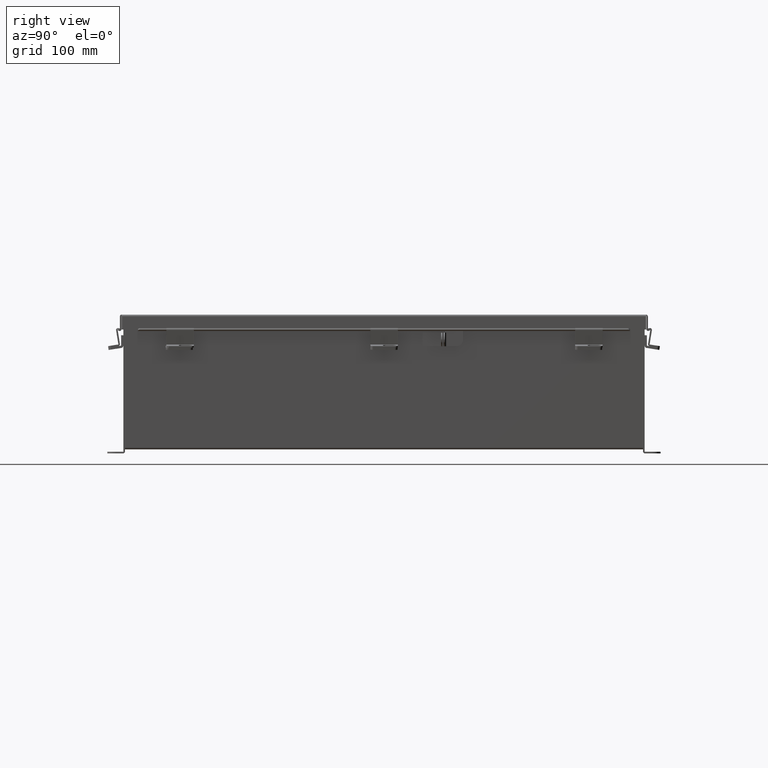
[diagram: clean part render]
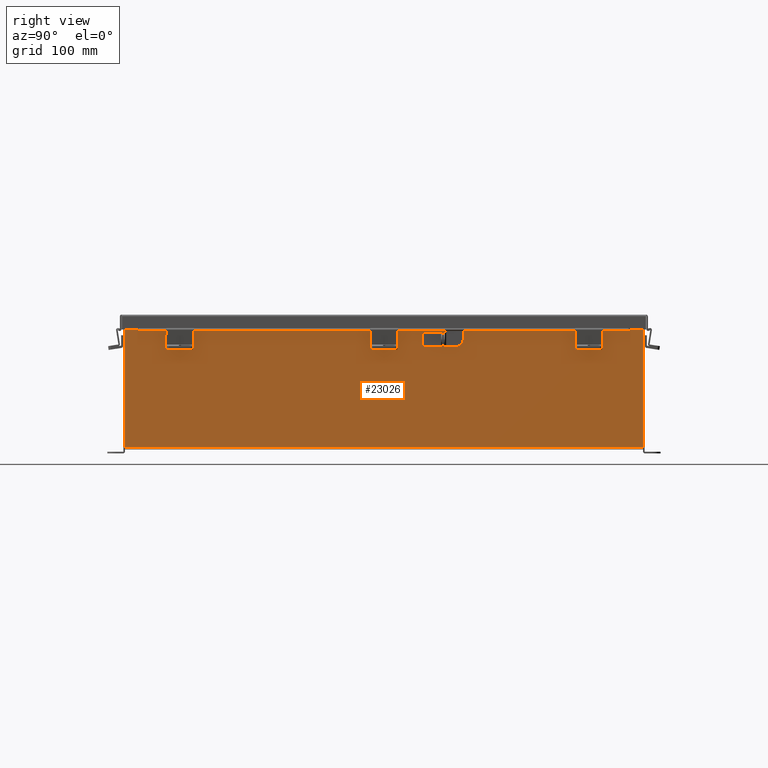
[diagram: same view with one face highlighted and labeled with its STEP entity id]
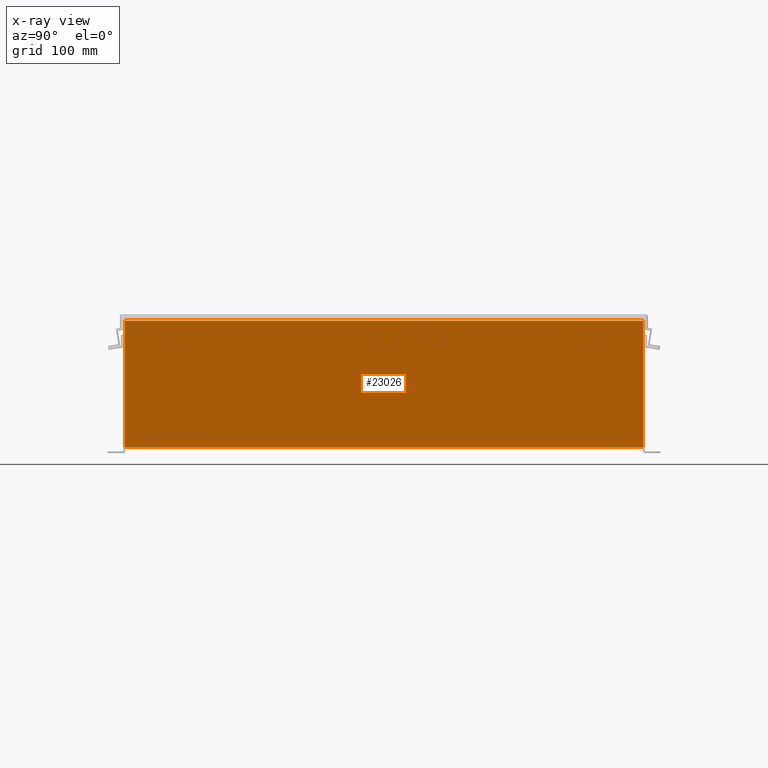
[diagram: x-ray of the same camera — body ghosted, the highlighted face saturated]
A machine part, right view. The second image highlights one B-rep face of the part: STEP entity #23026.
The next image is the same camera in x-ray: the body ghosted, the highlighted face saturated — about 0% of this face is hidden behind the body in this view.
In plain terms, the highlighted planar face has unit normal (-1, 0, 0).
Its self-contained STEP definition (entity closure, byte-faithful):
#157 = DIRECTION ( 'NONE',  ( -1.000000000000000000, 0.0000000000000000000, 3.361929640444175900E-015 ) ) ;
#276 = CARTESIAN_POINT ( 'NONE',  ( 10.00000000000000000, 0.0000000000000000000, -3.388345214641706500E-014 ) ) ;
#900 = VERTEX_POINT ( 'NONE', #20980 ) ;
#1121 = PLANE ( 'NONE',  #7264 ) ;
#4236 = ORIENTED_EDGE ( 'NONE', *, *, #17087, .F. ) ;
#6654 = VECTOR ( 'NONE', #22896, 39.37007874015748100 ) ;
#6812 = DIRECTION ( 'NONE',  ( 3.361929640444175900E-015, 0.0000000000000000000, 1.000000000000000000 ) ) ;
#7264 = AXIS2_PLACEMENT_3D ( 'NONE', #276, #157, #6812 ) ;
#9893 = LINE ( 'NONE', #14039, #12852 ) ;
#10002 = VECTOR ( 'NONE', #24255, 39.37007874015748100 ) ;
#10620 = LINE ( 'NONE', #14497, #10002 ) ;
#11052 = CARTESIAN_POINT ( 'NONE',  ( 10.00000000000001800, 11.92529999999998900, 5.837599999999999200 ) ) ;
#11556 = ORIENTED_EDGE ( 'NONE', *, *, #17935, .T. ) ;
#11777 = LINE ( 'NONE', #19758, #6654 ) ;
#11892 = EDGE_LOOP ( 'NONE', ( #11556, #16796, #4236, #15012 ) ) ;
#12852 = VECTOR ( 'NONE', #14067, 39.37007874015748100 ) ;
#13655 = CARTESIAN_POINT ( 'NONE',  ( 10.00000000000000000, -11.92530000000000000, 0.01299999999999985900 ) ) ;
#14039 = CARTESIAN_POINT ( 'NONE',  ( 10.00000000000000000, 11.92529999999999600, -2.942712510675223700E-014 ) ) ;
#14067 = DIRECTION ( 'NONE',  ( 3.361929640444176300E-015, -3.735477378271307500E-016, 1.000000000000000000 ) ) ;
#14497 = CARTESIAN_POINT ( 'NONE',  ( 10.00000000000000000, -11.92530000000000000, -3.388345214641706500E-014 ) ) ;
#14792 = VECTOR ( 'NONE', #15241, 39.37007874015748100 ) ;
#15012 = ORIENTED_EDGE ( 'NONE', *, *, #15481, .T. ) ;
#15241 = DIRECTION ( 'NONE',  ( -0.0000000000000000000, -1.000000000000000000, -0.0000000000000000000 ) ) ;
#15481 = EDGE_CURVE ( 'NONE', #900, #21208, #9893, .T. ) ;
#16795 = FACE_OUTER_BOUND ( 'NONE', #11892, .T. ) ;
#16796 = ORIENTED_EDGE ( 'NONE', *, *, #16830, .T. ) ;
#16830 = EDGE_CURVE ( 'NONE', #20331, #20065, #10620, .T. ) ;
#17087 = EDGE_CURVE ( 'NONE', #900, #20065, #20429, .T. ) ;
#17935 = EDGE_CURVE ( 'NONE', #21208, #20331, #11777, .T. ) ;
#19758 = CARTESIAN_POINT ( 'NONE',  ( 10.00000000000001800, 11.92529999999999300, 5.837599999999999200 ) ) ;
#20065 = VERTEX_POINT ( 'NONE', #13655 ) ;
#20331 = VERTEX_POINT ( 'NONE', #22093 ) ;
#20429 = LINE ( 'NONE', #24549, #14792 ) ;
#20980 = CARTESIAN_POINT ( 'NONE',  ( 10.00000000000000000, 11.92529999999999300, 0.01299999999999985900 ) ) ;
#21208 = VERTEX_POINT ( 'NONE', #11052 ) ;
#22093 = CARTESIAN_POINT ( 'NONE',  ( 10.00000000000002000, -11.92530000000000000, 5.837599999999999200 ) ) ;
#22896 = DIRECTION ( 'NONE',  ( -0.0000000000000000000, -1.000000000000000000, -0.0000000000000000000 ) ) ;
#23026 = ADVANCED_FACE ( 'NONE', ( #16795 ), #1121, .F. ) ;
#24255 = DIRECTION ( 'NONE',  ( -3.361929640444176300E-015, 0.0000000000000000000, -1.000000000000000000 ) ) ;
#24549 = CARTESIAN_POINT ( 'NONE',  ( 10.00000000000000000, -11.92530000000000000, 0.01299999999999985900 ) ) ;